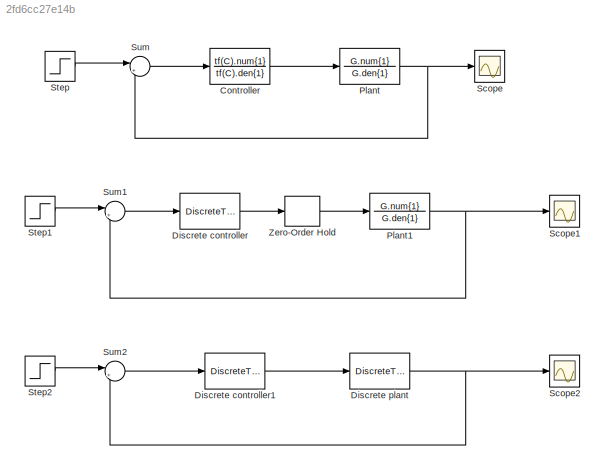
MODEL slx_2fd6cc27e14b
KIND model
BLOCK [TransferFcn] Controller
  Denominator = tf(C).den{1}
  Numerator = tf(C).num{1}
BLOCK [DiscreteTransferFcn] Discrete controller
  Denominator = tf(Cd).den{1}
  InputPortMap = u0
  Numerator = tf(Cd).num{1}
  Ports = [1, 1]
  SampleTime = Ts
BLOCK [DiscreteTransferFcn] Discrete controller1
  Denominator = tf(Cd).den{1}
  InputPortMap = u0
  Numerator = tf(Cd).num{1}
  Ports = [1, 1]
  SampleTime = Ts
BLOCK [DiscreteTransferFcn] Discrete plant
  Denominator = tf(Gd).den{1}
  InputPortMap = u0
  Numerator = tf(Gd).num{1}
  Ports = [1, 1]
  SampleTime = Ts
BLOCK [TransferFcn] Plant
  Denominator = G.den{1}
  Numerator = G.num{1}
BLOCK [TransferFcn] Plant1
  Denominator = G.den{1}
  Numerator = G.num{1}
BLOCK [Scope] Scope
  DataFormat = StructureWithTime
  Floating = off
  NumInputPorts = 1
  Ports = [1]
  SampleTime = 0
  ShowLegends = off
BLOCK [Scope] Scope1
  DataFormat = StructureWithTime
  Floating = off
  NumInputPorts = 1
  Ports = [1]
  SampleTime = 0
  SaveName = ScopeData1
  ShowLegends = off
BLOCK [Scope] Scope2
  DataFormat = StructureWithTime
  Floating = off
  NumInputPorts = 1
  Ports = [1]
  SampleTime = 0
  SaveName = ScopeData2
  ShowLegends = off
BLOCK [Step] Step
  SampleTime = 0
  Time = 0
BLOCK [Step] Step1
  SampleTime = 0
  Time = 0
BLOCK [Step] Step2
  SampleTime = 0
  Time = 0
BLOCK [Sum] Sum
  IconShape = round
  InputSameDT = off
  Inputs = |+-
  OutDataTypeStr = Inherit: Inherit via internal rule
  Ports = [2, 1]
  SaturateOnIntegerOverflow = off
BLOCK [Sum] Sum1
  IconShape = round
  InputSameDT = off
  Inputs = |+-
  OutDataTypeStr = Inherit: Inherit via internal rule
  Ports = [2, 1]
  SaturateOnIntegerOverflow = off
BLOCK [Sum] Sum2
  IconShape = round
  InputSameDT = off
  Inputs = |+-
  OutDataTypeStr = Inherit: Inherit via internal rule
  Ports = [2, 1]
  SaturateOnIntegerOverflow = off
BLOCK [ZeroOrderHold] Zero-Order Hold
  SampleTime = Ts
LINE Controller:1 -> Plant:1
LINE Discrete controller1:1 -> Discrete plant:1
LINE Discrete controller:1 -> Zero-Order Hold:1
NET Discrete plant:1 -> Scope2:1, Sum2:2
NET Plant1:1 -> Scope1:1, Sum1:2
NET Plant:1 -> Scope:1, Sum:2
LINE Step1:1 -> Sum1:1
LINE Step2:1 -> Sum2:1
LINE Step:1 -> Sum:1
LINE Sum1:1 -> Discrete controller:1
LINE Sum2:1 -> Discrete controller1:1
LINE Sum:1 -> Controller:1
LINE Zero-Order Hold:1 -> Plant1:1
note: NET lines group one-source signal fan-out (src -> all destinations, sorted); 1:1 wires keep LINE
